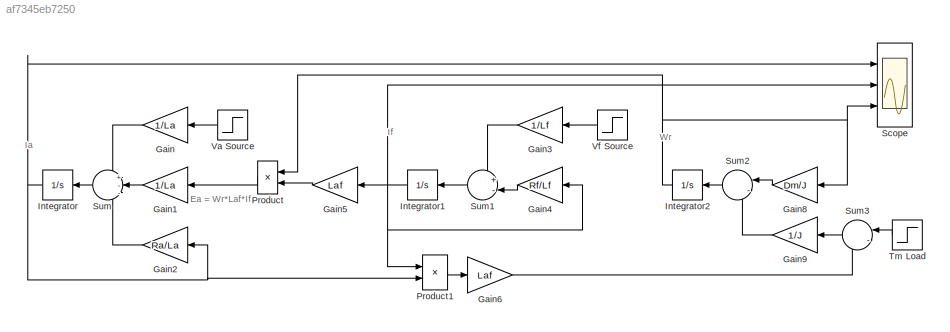
MODEL slx_af7345eb7250
KIND model
CONFIG AbsTol = auto
CONFIG EnableMultiTasking = on
CONFIG FixedStep = auto
CONFIG MaxStep = auto
CONFIG MinStep = auto
CONFIG RelTol = 1e-3
CONFIG SampleTimeConstraint = Unconstrained
CONFIG Solver = ode45
CONFIG SolverName = ode45
CONFIG StartTime = 0.0
CONFIG StopTime = 6
BLOCK [Gain] Gain
  Gain = 1/La
BLOCK [Gain] Gain1
  Gain = 1/La
BLOCK [Gain] Gain2
  Gain = Ra/La
BLOCK [Gain] Gain3
  Gain = 1/Lf
BLOCK [Gain] Gain4
  Gain = Rf/Lf
BLOCK [Gain] Gain5
  Gain = Laf
BLOCK [Gain] Gain6
  Gain = Laf
BLOCK [Gain] Gain8
  Gain = Dm/J
BLOCK [Gain] Gain9
  Gain = 1/J
BLOCK [Integrator] Integrator
  Ports = [1, 1]
BLOCK [Integrator] Integrator1
  Ports = [1, 1]
BLOCK [Integrator] Integrator2
  Ports = [1, 1]
BLOCK [Product] Product
  InputSameDT = off
  Ports = [2, 1]
  RndMeth = Floor
BLOCK [Product] Product1
  InputSameDT = off
  Ports = [2, 1]
  RndMeth = Floor
BLOCK [Scope] Scope
  NumInputPorts = 3
  Ports = [3]
  ScopeSpecificationString = Simulink.scopes.TimeScopeBlockCfg('CurrentConfiguration', extmgr.ConfigurationSet(extmgr.Configuration('Core','General UI',true),extmgr.Configuration('Core','Source UI',true),extmgr.Configuration('Sources','WiredSimulink',true,'DataLoggingSaveFormat','StructureWithTime','DataLoggingDecimation','1','DataLoggingDecimateData',true),extmgr.Configuration('Visuals','Time Domain',true,'SerializedDisplays...<+3067ch>
BLOCK [Sum] Sum
  IconShape = round
  InputSameDT = off
  Inputs = +--
  OutDataTypeStr = Inherit: Inherit via internal rule
  Ports = [3, 1]
BLOCK [Sum] Sum1
  IconShape = round
  InputSameDT = off
  Inputs = +-|
  OutDataTypeStr = Inherit: Inherit via internal rule
  Ports = [2, 1]
BLOCK [Sum] Sum2
  IconShape = round
  InputSameDT = off
  Inputs = |-+
  OutDataTypeStr = Inherit: Inherit via internal rule
  Ports = [2, 1]
BLOCK [Sum] Sum3
  IconShape = round
  InputSameDT = off
  Inputs = |-+
  OutDataTypeStr = Inherit: Inherit via internal rule
  Ports = [2, 1]
BLOCK [Step] Tm Load
  After = Tm
  SampleTime = 0
  Time = 4
BLOCK [Step] Va Source
  After = Va
  SampleTime = 0
  Time = 2
BLOCK [Step] Vf Source
  After = Va
  Before = Va
  SampleTime = 0
  Time = 0
ANNOTATION (root): Ea = Wr*Laf*If
ANNOTATION (root): Ia
ANNOTATION (root): If
ANNOTATION (root): Wr
LINE Gain1:1 -> Sum:2
LINE Gain2:1 -> Sum:3
LINE Gain3:1 -> Sum1:1
LINE Gain4:1 -> Sum1:2
LINE Gain5:1 -> Product:2
LINE Gain6:1 -> Sum3:2
LINE Gain8:1 -> Sum2:1
LINE Gain9:1 -> Sum2:2
LINE Gain:1 -> Sum:1
NET Integrator1:1 -> Gain4:1, Gain5:1, Product1:1, Scope:2
NET Integrator2:1 -> Gain8:1, Product:1, Scope:3
NET Integrator:1 -> Gain2:1, Product1:2, Scope:1
LINE Product1:1 -> Gain6:1
LINE Product:1 -> Gain1:1
LINE Sum1:1 -> Integrator1:1
LINE Sum2:1 -> Integrator2:1
LINE Sum3:1 -> Gain9:1
LINE Sum:1 -> Integrator:1
LINE Tm Load:1 -> Sum3:1
LINE Va Source:1 -> Gain:1
LINE Vf Source:1 -> Gain3:1
note: NET lines group one-source signal fan-out (src -> all destinations, sorted); 1:1 wires keep LINE
